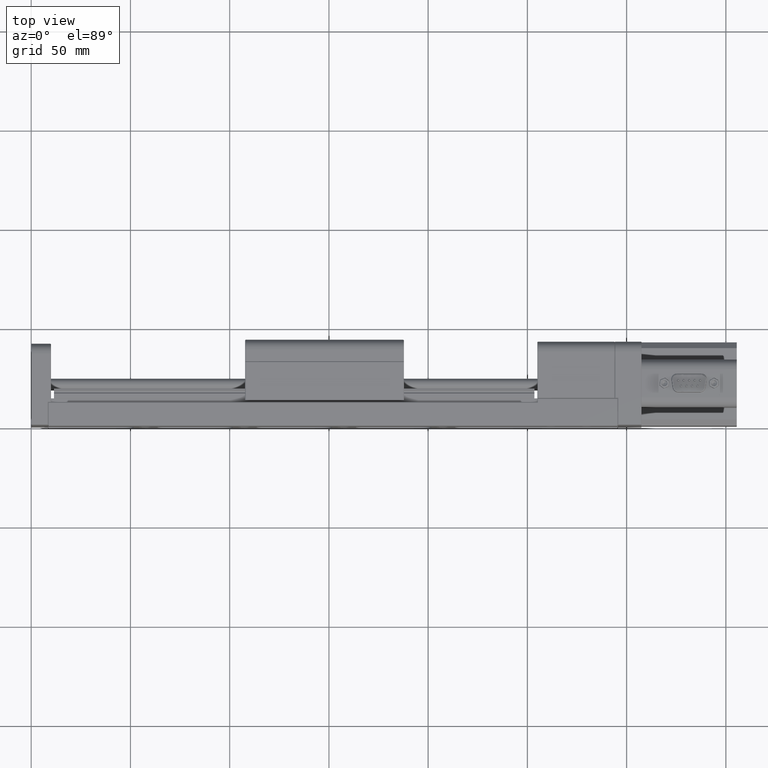
[diagram: clean part render]
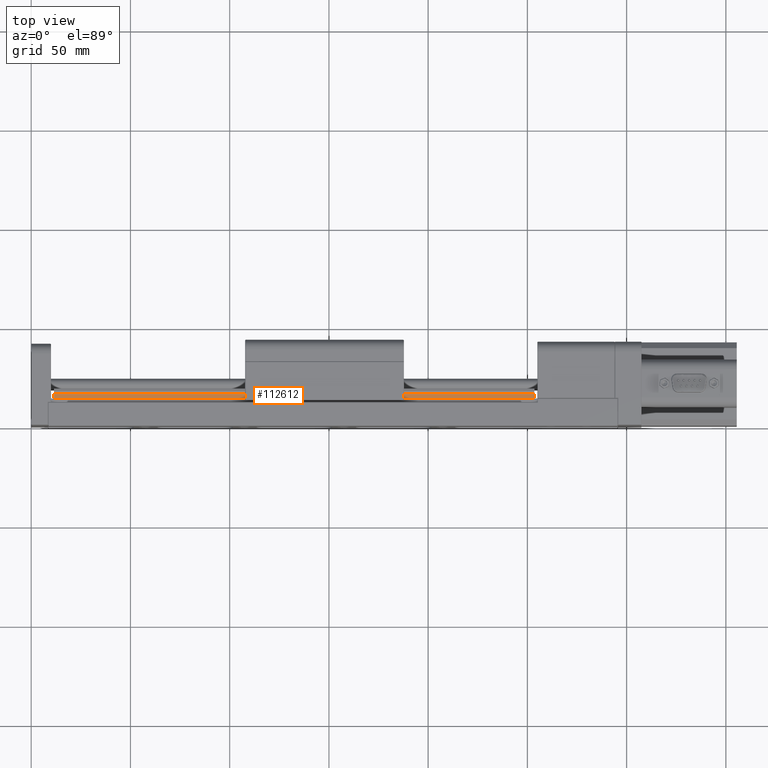
[diagram: same view with one face highlighted and labeled with its STEP entity id]
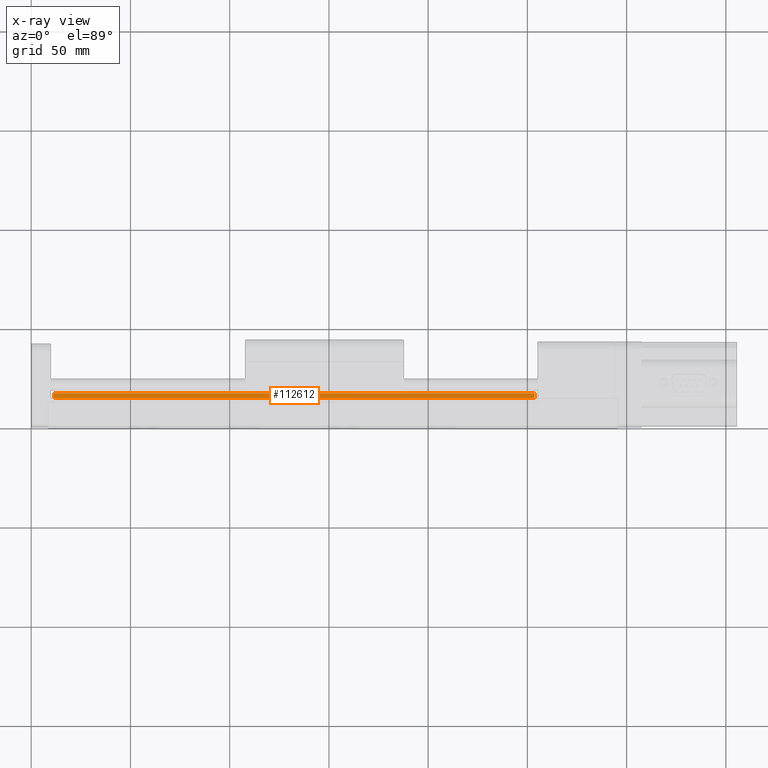
[diagram: x-ray of the same camera — body ghosted, the highlighted face saturated]
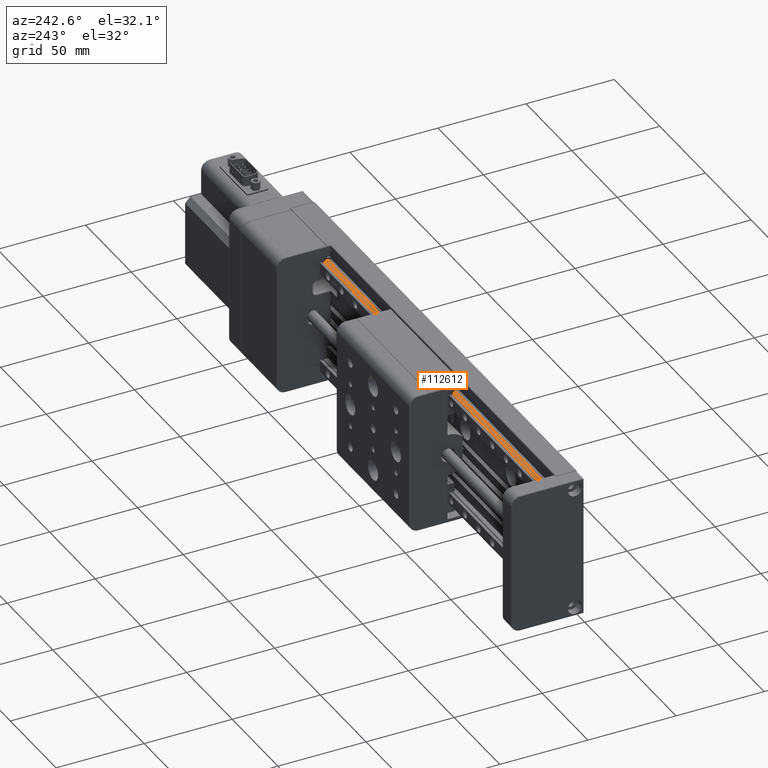
[diagram: same view with one face highlighted and labeled with its STEP entity id]
A machine part, top view. The second image highlights one B-rep face of the part: STEP entity #112612.
The next image is the same camera in x-ray: the body ghosted, the highlighted face saturated — about 0% of this face is hidden behind the body in this view.
A second angle (auxiliary view) of the same face is appended — the face is thin or edge-on in the first view.
In plain terms, the highlighted planar face has unit normal (0, -0, -1).
Its self-contained STEP definition (entity closure, byte-faithful):
#332 = DIRECTION ( 'NONE',  ( -1.000000000000000000, -9.055779535059077900E-018, -1.301042606982647700E-018 ) ) ;
#1690 = CARTESIAN_POINT ( 'NONE',  ( 253.5000000000000000, 16.60000000000000100, -7.500000000000000000 ) ) ;
#7462 = VERTEX_POINT ( 'NONE', #17918 ) ;
#7673 = VERTEX_POINT ( 'NONE', #1690 ) ;
#11287 = CARTESIAN_POINT ( 'NONE',  ( 11.49999999999998200, 16.41899298511882000, -7.500000000000000000 ) ) ;
#12501 = VERTEX_POINT ( 'NONE', #59019 ) ;
#13762 = LINE ( 'NONE', #102083, #86172 ) ;
#16300 = ORIENTED_EDGE ( 'NONE', *, *, #49131, .F. ) ;
#16907 = VERTEX_POINT ( 'NONE', #63821 ) ;
#17918 = CARTESIAN_POINT ( 'NONE',  ( 11.49999999999992700, 14.19999999999999900, -7.500000000000000000 ) ) ;
#21647 = PLANE ( 'NONE',  #24352 ) ;
#24352 = AXIS2_PLACEMENT_3D ( 'NONE', #86851, #87672, #116485 ) ;
#26703 = EDGE_CURVE ( 'NONE', #7673, #16907, #111135, .T. ) ;
#27897 = FACE_OUTER_BOUND ( 'NONE', #69548, .T. ) ;
#28507 = CARTESIAN_POINT ( 'NONE',  ( 253.5000000000000000, 16.60000000000000100, -7.500000000000000000 ) ) ;
#35188 = ORIENTED_EDGE ( 'NONE', *, *, #26703, .T. ) ;
#43053 = LINE ( 'NONE', #47576, #113729 ) ;
#47576 = CARTESIAN_POINT ( 'NONE',  ( 253.5000000000000000, 14.20000000000000100, -7.500000000000000000 ) ) ;
#49131 = EDGE_CURVE ( 'NONE', #12501, #7462, #43053, .T. ) ;
#54724 = DIRECTION ( 'NONE',  ( -9.055779535059324400E-018, 1.000000000000000000, -2.154946931307884300E-016 ) ) ;
#59019 = CARTESIAN_POINT ( 'NONE',  ( 253.5000000000000000, 14.20000000000000100, -7.500000000000000000 ) ) ;
#63821 = CARTESIAN_POINT ( 'NONE',  ( 11.49999999999998200, 16.60000000000000100, -7.500000000000000000 ) ) ;
#65250 = DIRECTION ( 'NONE',  ( -1.000000000000000000, -9.055779535059077900E-018, -1.301042606982647700E-018 ) ) ;
#69548 = EDGE_LOOP ( 'NONE', ( #72837, #35188, #92812, #16300 ) ) ;
#72837 = ORIENTED_EDGE ( 'NONE', *, *, #83424, .T. ) ;
#76916 = DIRECTION ( 'NONE',  ( 9.055779535059324400E-018, -1.000000000000000000, 2.154946931307884300E-016 ) ) ;
#79334 = EDGE_CURVE ( 'NONE', #16907, #7462, #100576, .T. ) ;
#83424 = EDGE_CURVE ( 'NONE', #12501, #7673, #13762, .T. ) ;
#86126 = VECTOR ( 'NONE', #332, 1000.000000000000000 ) ;
#86172 = VECTOR ( 'NONE', #54724, 1000.000000000000000 ) ;
#86851 = CARTESIAN_POINT ( 'NONE',  ( 253.5000000000000000, 16.60000000000000100, -7.500000000000000000 ) ) ;
#87672 = DIRECTION ( 'NONE',  ( 1.301042606982649600E-018, -2.154946931307872500E-016, -1.000000000000000000 ) ) ;
#91723 = VECTOR ( 'NONE', #76916, 1000.000000000000000 ) ;
#92812 = ORIENTED_EDGE ( 'NONE', *, *, #79334, .T. ) ;
#100576 = LINE ( 'NONE', #11287, #91723 ) ;
#102083 = CARTESIAN_POINT ( 'NONE',  ( 253.5000000000000000, 14.00000000000000200, -7.500000000000000000 ) ) ;
#111135 = LINE ( 'NONE', #28507, #86126 ) ;
#112612 = ADVANCED_FACE ( 'NONE', ( #27897 ), #21647, .F. ) ;
#113729 = VECTOR ( 'NONE', #65250, 1000.000000000000000 ) ;
#116485 = DIRECTION ( 'NONE',  ( -1.000000000000000000, -9.055779535059077900E-018, -1.301042606982647700E-018 ) ) ;